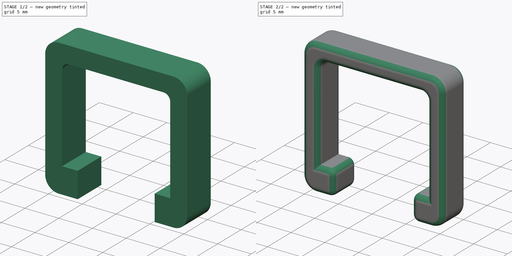
[diagram: build sequence overview — one tinted view per stage of 2, left to right]
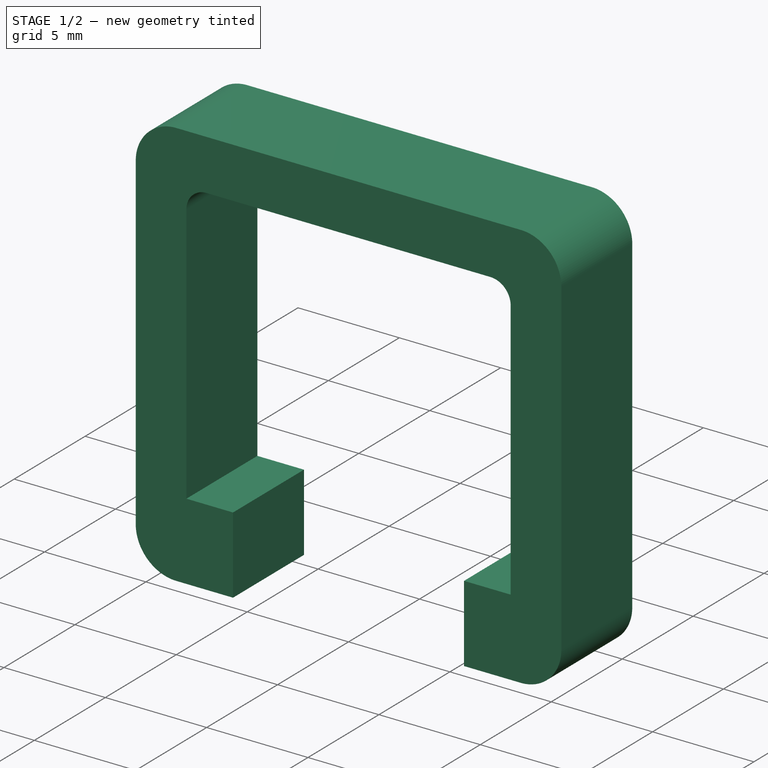
[diagram: stage 1 of 2 — iso view after this stage's code; geometry added in this stage tinted green]
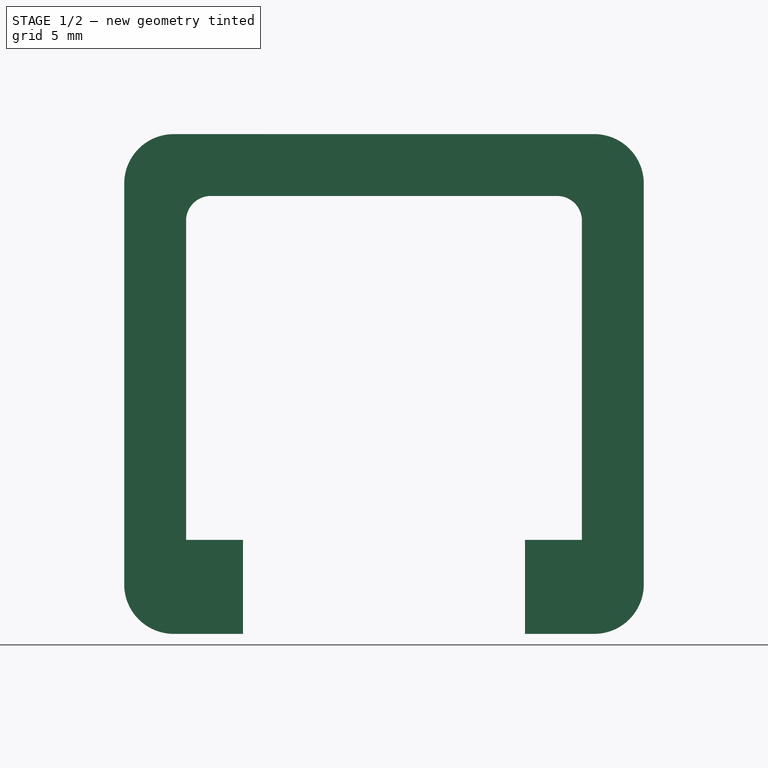
[diagram: stage 1 of 2 — front view after this stage's code; geometry added in this stage tinted green]
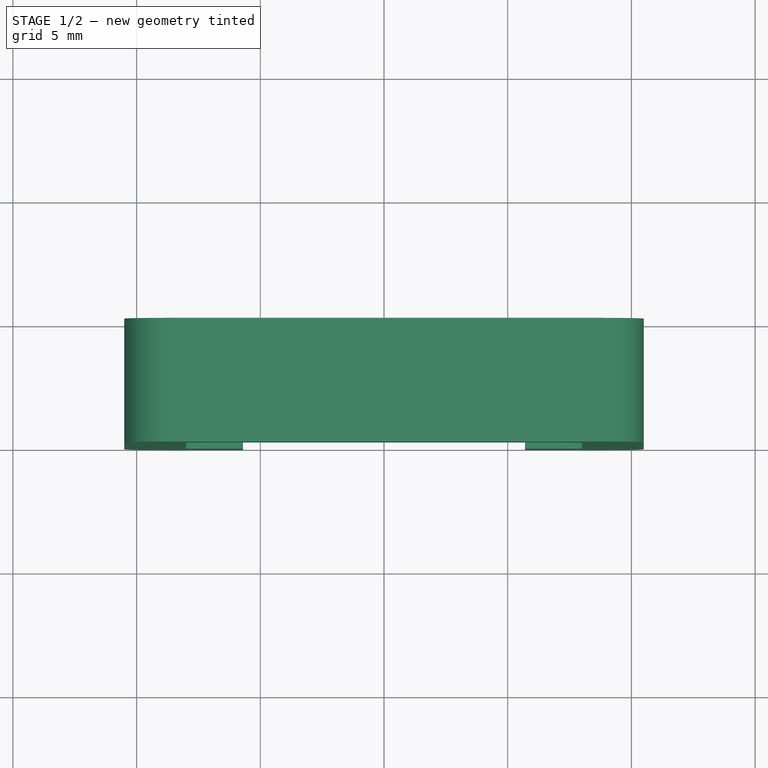
[diagram: stage 1 of 2 — top view after this stage's code; geometry added in this stage tinted green]
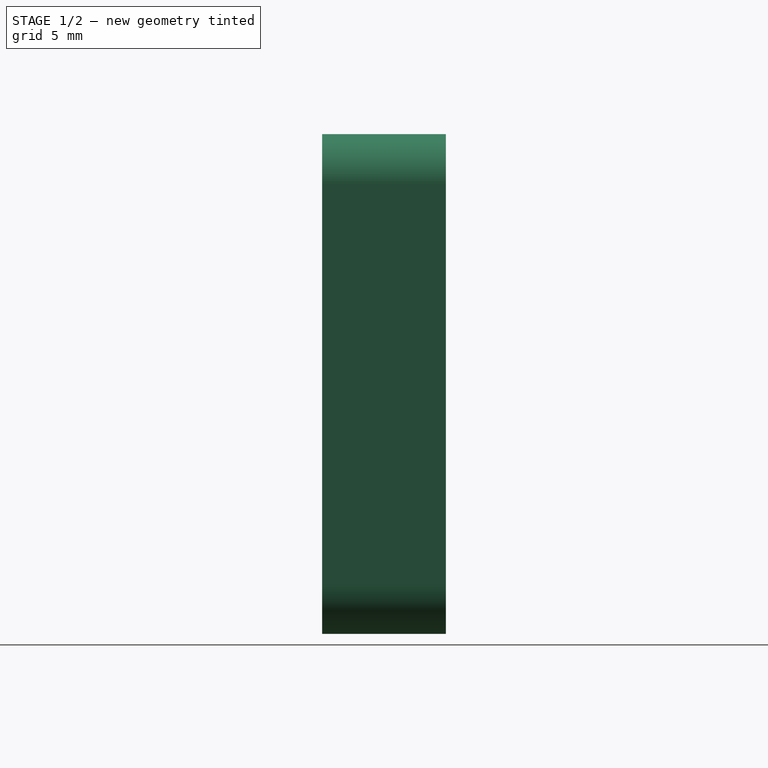
[diagram: stage 1 of 2 — right view after this stage's code; geometry added in this stage tinted green]
FCSTD DOCUMENT  (FreeCAD 1.0R38641 +468 (Git))
Label: probe-holder-replaceable-tip-clip
License: All rights reserved
LicenseURL: http://en.wikipedia.org/wiki/All_rights_reserved
objects: Sketcher::SketchObject×1, PartDesign::Pad×1, PartDesign::Fillet×1, PartDesign::Body×1
note: 9 computed .brp shape members not serialized (recipe doc carries the construction recipe); baked Part::Feature solids carry a one-line shape summary decoded from their .brp

FEATURE [Sketcher::SketchObject] Sketch
  ArcFitTolerance = 1e-06
  AttachmentSupport = -> [XZ_Plane]
  FullyConstrained = true
  MakeInternals = false
  MapMode = 5
  Placement = pos=(0,0,0) rot=(1,0,0;1.5708rad)
  sketch-geometry (24):
    g0: LineSegment StartX=-8 StartY=5.95 StartZ=0 EndX=-8 EndY=-6.95 EndZ=0
    g1: LineSegment StartX=8 StartY=-6.95 StartZ=0 EndX=8 EndY=5.95 EndZ=0
    g2: LineSegment StartX=7 StartY=6.95 StartZ=0 EndX=-7 EndY=6.95 EndZ=0
    g3: ArcOfCircle CenterX=-7 CenterY=5.95 CenterZ=0 NormalX=0 NormalY=0 NormalZ=1 AngleXU=0 Radius=1 StartAngle=1.5708 EndAngle=3.14159
    g4: GeomPoint [constr] X=-8 Y=6.95 Z=0
    g5: ArcOfCircle CenterX=7 CenterY=5.95 CenterZ=0 NormalX=0 NormalY=0 NormalZ=1 AngleXU=0 Radius=1 StartAngle=0 EndAngle=1.5708
    g6: GeomPoint [constr] X=8 Y=6.95 Z=0
    g7: LineSegment StartX=-5.7 StartY=-6.95 StartZ=0 EndX=-5.7 EndY=-10.75 EndZ=0
    g8: LineSegment StartX=-5.7 StartY=-10.75 StartZ=0 EndX=-8.5 EndY=-10.75 EndZ=0
    g9: LineSegment StartX=-10.5 StartY=-8.75 StartZ=0 EndX=-10.5 EndY=7.45 EndZ=0
    g10: LineSegment StartX=-8.5 StartY=9.45 StartZ=0 EndX=8.5 EndY=9.45 EndZ=0
    g11: LineSegment StartX=10.5 StartY=7.45 StartZ=0 EndX=10.5 EndY=-8.75 EndZ=0
    g12: LineSegment StartX=8.5 StartY=-10.75 StartZ=0 EndX=5.7 EndY=-10.75 EndZ=0
    g13: LineSegment StartX=5.7 StartY=-10.75 StartZ=0 EndX=5.7 EndY=-6.95 EndZ=0
    g14: ArcOfCircle CenterX=-8.5 CenterY=7.45 CenterZ=0 NormalX=0 NormalY=0 NormalZ=1 AngleXU=0 Radius=2 StartAngle=1.5708 EndAngle=3.14159
    g15: GeomPoint [constr] X=-10.5 Y=9.45 Z=0
    g16: ArcOfCircle CenterX=8.5 CenterY=7.45 CenterZ=0 NormalX=0 NormalY=0 NormalZ=1 AngleXU=0 Radius=2 StartAngle=0 EndAngle=1.5708
    g17: GeomPoint [constr] X=10.5 Y=9.45 Z=0
    g18: ArcOfCircle CenterX=8.5 CenterY=-8.75 CenterZ=0 NormalX=0 NormalY=0 NormalZ=1 AngleXU=0 Radius=2 StartAngle=4.71239 EndAngle=6.28319
    g19: GeomPoint [constr] X=10.5 Y=-10.75 Z=0
    g20: ArcOfCircle CenterX=-8.5 CenterY=-8.75 CenterZ=0 NormalX=0 NormalY=0 NormalZ=1 AngleXU=0 Radius=2 StartAngle=3.14159 EndAngle=4.71239
    g21: GeomPoint [constr] X=-10.5 Y=-10.75 Z=0
    g22: LineSegment StartX=5.7 StartY=-6.95 StartZ=0 EndX=8 EndY=-6.95 EndZ=0
    g23: LineSegment StartX=-8 StartY=-6.95 StartZ=0 EndX=-5.7 EndY=-6.95 EndZ=0
  constraints (59):
    c: Vertical(g0)
    c: Vertical(g1)
    c: DistanceX(g4,g6) = 16
    c: Symmetric(g6,g4,g-2)
    c: DistanceY(g0,g4) = 13.9
    c: DistanceY(g0) = -6.95
    c: PointOnObject(g4,g2)
    c: PointOnObject(g4,g0)
    c: Tangent(g2,g3) = -1.5708
    c: Tangent(g0,g3) = -1.5708
    c: PointOnObject(g6,g2)
    c: PointOnObject(g6,g1)
    c: Tangent(g2,g5) = -1.5708
    c: Tangent(g1,g5) = -1.5708
    c: Radius(g3) = 1
    c: Radius(g5) = 1
    c: Distance(g7) = 3.8
    c: Vertical(g7)
    c: Distance(g8,g21) = 4.8
    c: Coincident(g8,g7)
    c: Horizontal(g8)
    c: Distance(g21,g15) = 20.2
    c: Vertical(g9)
    c: Distance(g17,g15) = 21
    c: Horizontal(g10)
    c: Vertical(g11)
    c: Horizontal(g19,g7)
    c: Distance(g12,g19) = 4.8
    c: Horizontal(g12)
    c: Coincident(g13,g12)
    c: Vertical(g13)
    c: PointOnObject(g15,g9)
    c: PointOnObject(g15,g10)
    c: Tangent(g9,g14) = 1.5708
    c: Tangent(g10,g14) = 1.5708
    c: PointOnObject(g17,g11)
    c: PointOnObject(g17,g10)
    c: Tangent(g11,g16) = 1.5708
    c: Tangent(g10,g16) = 1.5708
    c: Radius(g14) = 2
    c: Radius(g16) = 2
    c: PointOnObject(g19,g12)
    c: PointOnObject(g19,g11)
    c: Tangent(g12,g18) = 1.5708
    c: Tangent(g11,g18) = 1.5708
    c: PointOnObject(g21,g9)
    c: PointOnObject(g21,g8)
    c: Tangent(g9,g20) = 1.5708
    c: Tangent(g8,g20) = 1.5708
    c: Radius(g20) = 2
    c: Radius(g18) = 2
    c: Coincident(g22,g13)
    c: Coincident(g22,g1)
    c: Horizontal(g22)
    c: DistanceY(g1,g1) = 12.9
    c: Coincident(g23,g0)
    c: Coincident(g23,g7)
    c: Horizontal(g23)
    c: DistanceX(g23,g23) = 2.3
FEATURE [PartDesign::Pad] Pad
  Direction = (0,-1,2e-16)
  Length = 5
  Length2 = 10
  Placement = pos=(0,0,0) rot=(1,0,0;1.5708rad)
  Profile = -> Sketch
  ReferenceAxis = -> Sketch [N_Axis]
  Refine = true
  Suppressed = false
  Type = 0
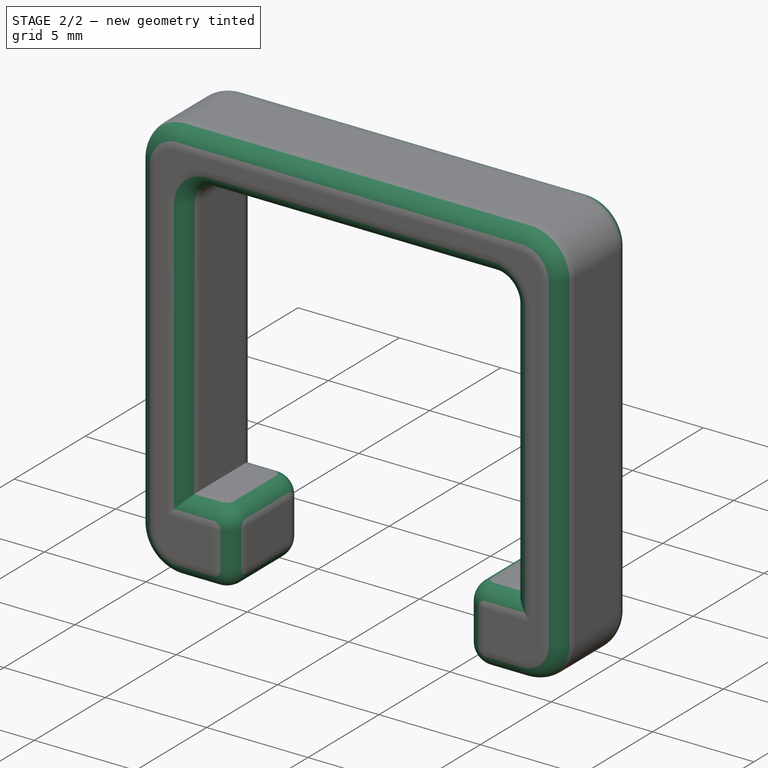
[diagram: stage 2 of 2 — iso view after this stage's code; geometry added in this stage tinted green]
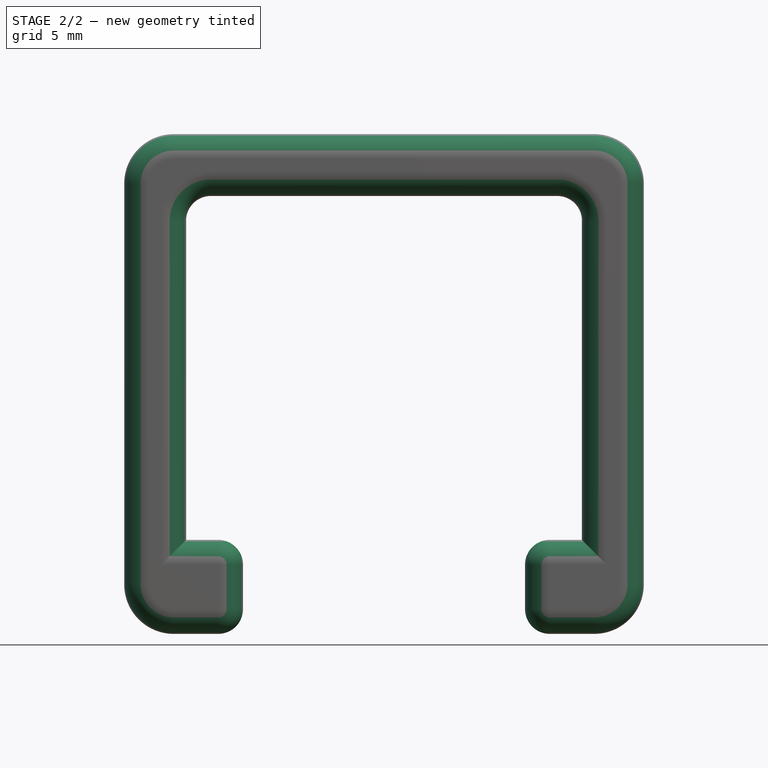
[diagram: stage 2 of 2 — front view after this stage's code; geometry added in this stage tinted green]
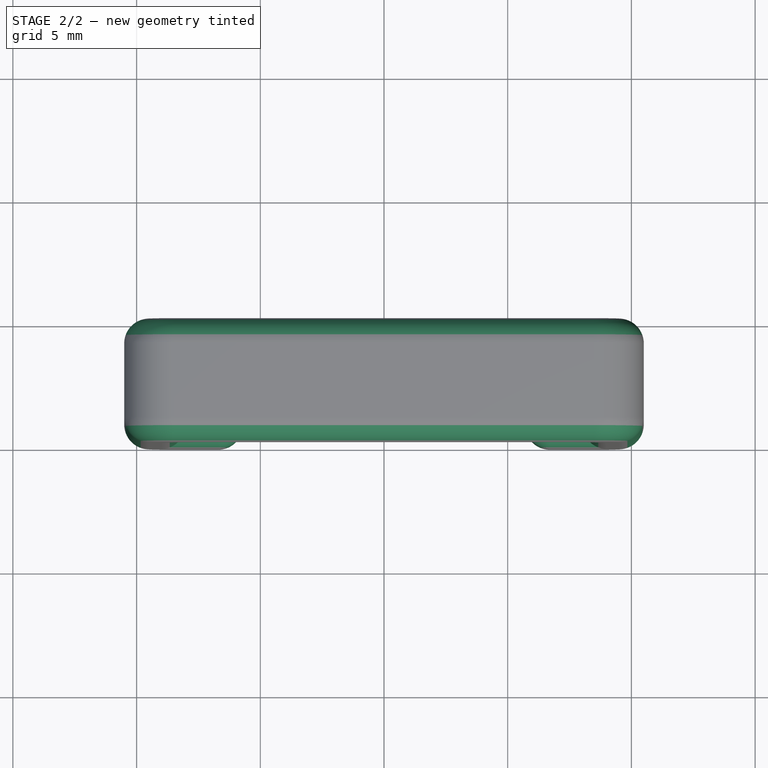
[diagram: stage 2 of 2 — top view after this stage's code; geometry added in this stage tinted green]
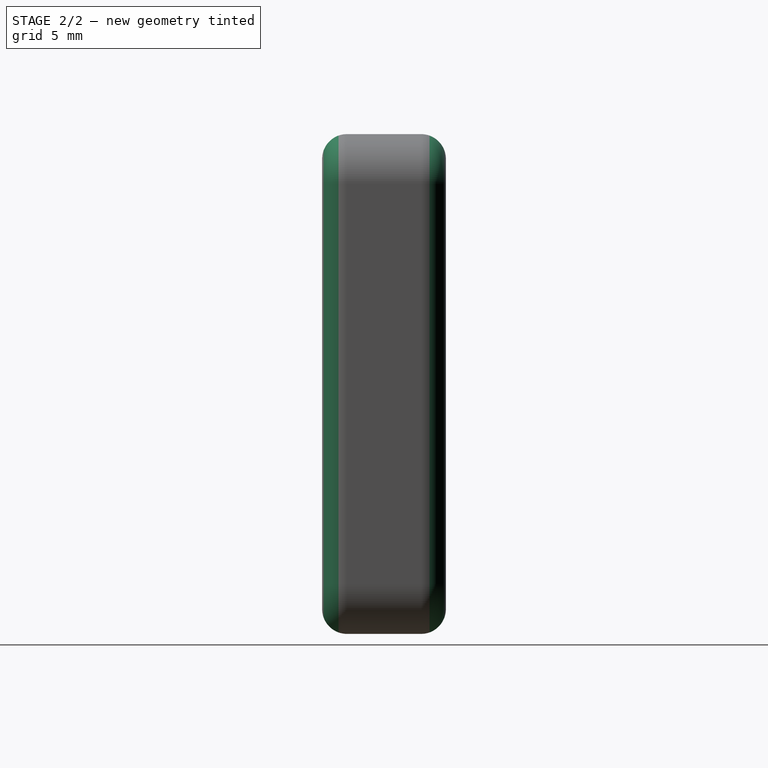
[diagram: stage 2 of 2 — right view after this stage's code; geometry added in this stage tinted green]
FEATURE [PartDesign::Fillet] Fillet
  Base = -> Pad [Edge28,Edge25,Edge26,Edge31,Edge29,Edge40,Edge24,Edge27,Edge30,Edge45,Edge7,Edge2,Edge6,Edge5,Edge10,Edge4,Edge52,Edge13,Edge12,Edge39,Edge46,Edge51,Edge9]
  BaseFeature = -> Pad
  Placement = pos=(0,0,0) rot=(1,0,0;1.5708rad)
  Radius = 1
  Refine = true
  SupportTransform = false
  Suppressed = false
  UseAllEdges = false
FEATURE [PartDesign::Body] Body
  AllowCompound = false
  Group = -> [Sketch,Pad,Fillet]
  Origin = -> Origin
  Tip = -> Fillet
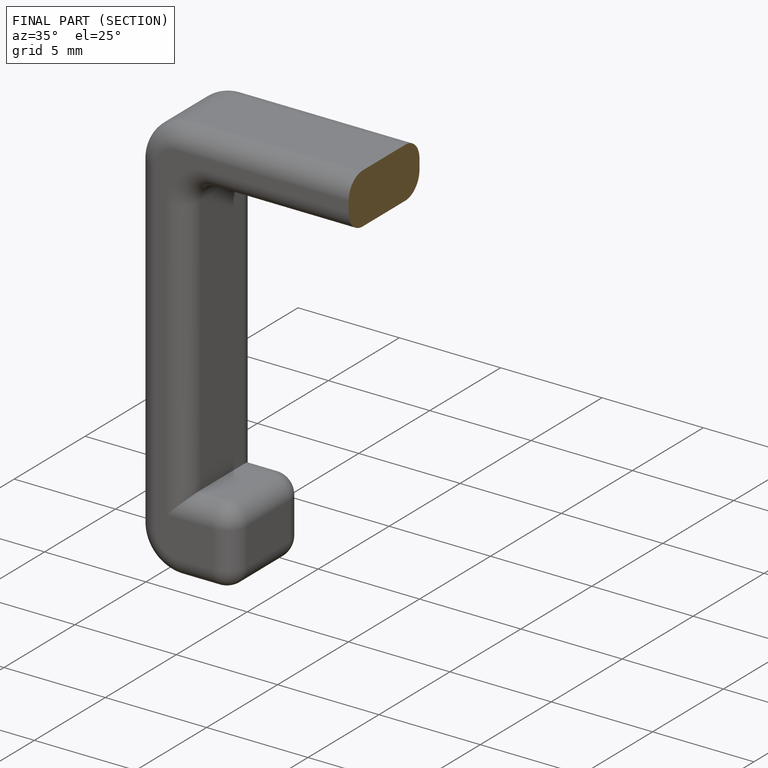
[diagram: finished part — half-section view (interior)]
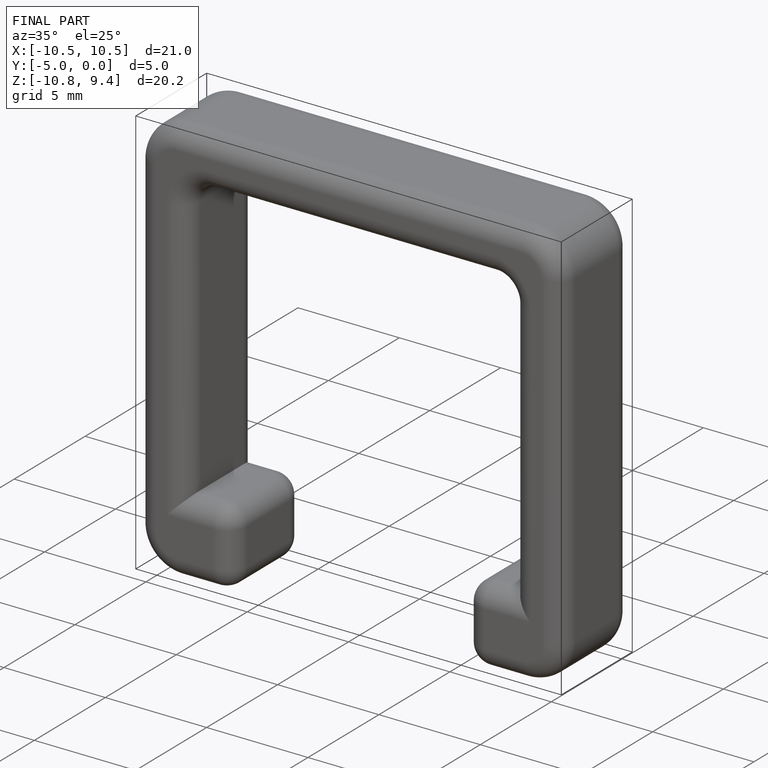
[diagram: finished part — iso view with bounding-box wireframe]
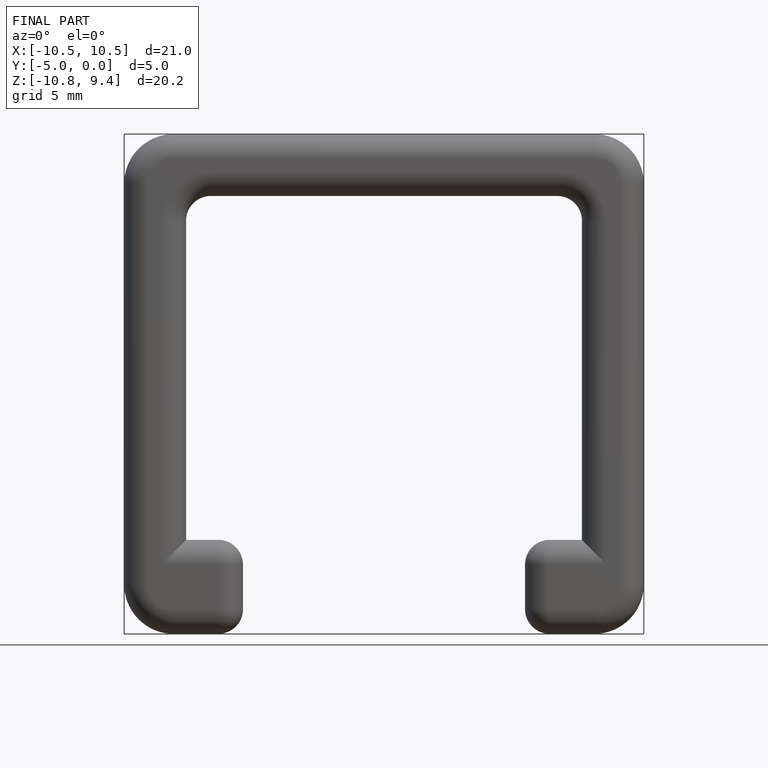
[diagram: finished part — front view with bounding-box wireframe]
